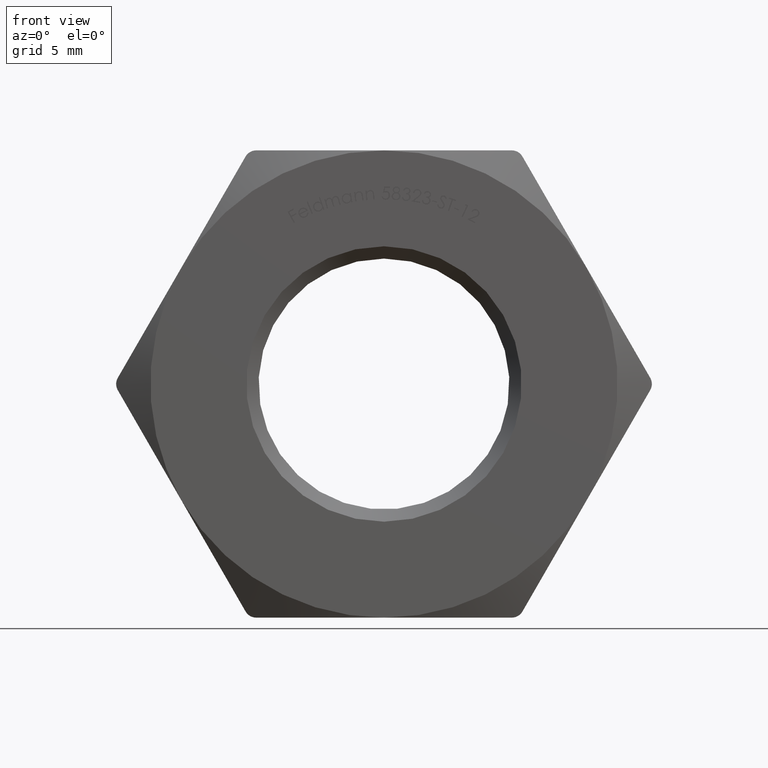
[diagram: clean part render]
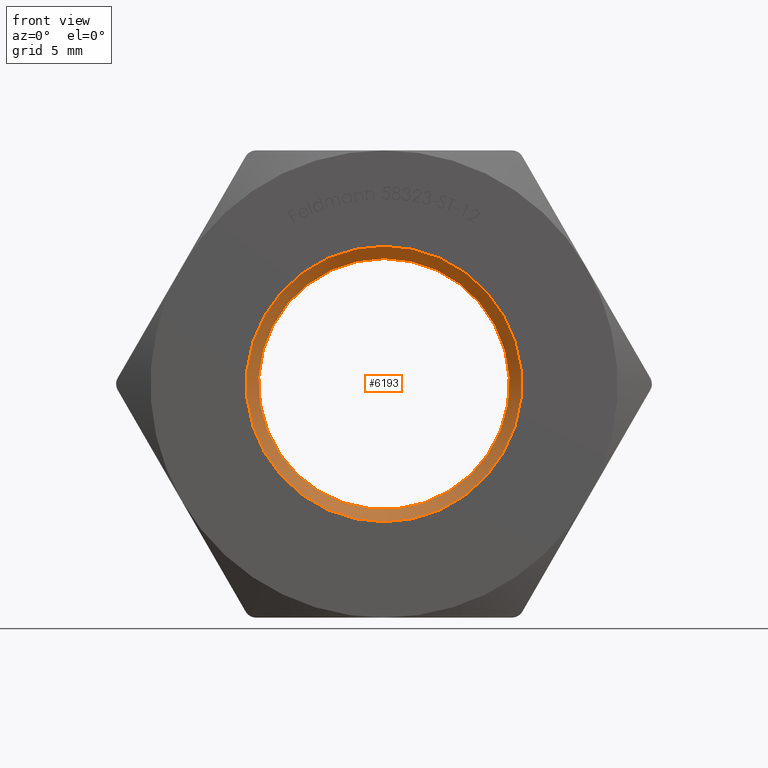
[diagram: same view with one face highlighted and labeled with its STEP entity id]
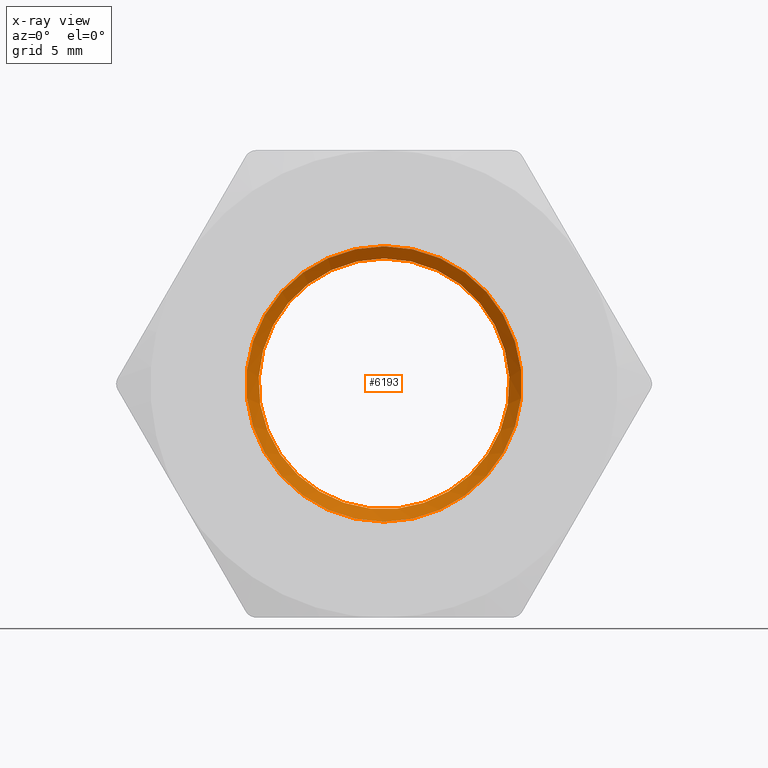
[diagram: x-ray of the same camera — body ghosted, the highlighted face saturated]
A machine part, front view. The second image highlights one B-rep face of the part: STEP entity #6193.
The next image is the same camera in x-ray: the body ghosted, the highlighted face saturated — about 0% of this face is hidden behind the body in this view.
In plain terms, the highlighted conical surface has half-angle 45 deg.
Its self-contained STEP definition (entity closure, byte-faithful):
#43 = DIRECTION ( 'NONE',  ( -0.000000000000000000, -1.000000000000000000, -0.000000000000000000 ) ) ;
#1066 = CARTESIAN_POINT ( 'NONE',  ( 0.000000000000000000, -3.000000000000003109, 0.000000000000000000 ) ) ;
#1412 = DIRECTION ( 'NONE',  ( 0.000000000000000000, 0.000000000000000000, 1.000000000000000000 ) ) ;
#1511 = DIRECTION ( 'NONE',  ( 0.000000000000000000, 1.000000000000000000, 0.000000000000000000 ) ) ;
#2236 = CARTESIAN_POINT ( 'NONE',  ( 0.000000000000000000, -3.500000000000000000, 0.000000000000000000 ) ) ;
#2817 = ORIENTED_EDGE ( 'NONE', *, *, #3908, .F. ) ;
#3201 = AXIS2_PLACEMENT_3D ( 'NONE', #2236, #9427, #15152 ) ;
#3908 = EDGE_CURVE ( 'NONE', #13890, #13890, #4319, .T. ) ;
#3997 = CARTESIAN_POINT ( 'NONE',  ( 0.000000000000000000, -3.000000000000003109, 5.099999999999996980 ) ) ;
#4319 = CIRCLE ( 'NONE', #8056, 5.099999999999996980 ) ;
#4681 = AXIS2_PLACEMENT_3D ( 'NONE', #10885, #1511, #1412 ) ;
#6193 = ADVANCED_FACE ( 'NONE', ( #13962, #8002 ), #14690, .F. ) ;
#6977 = VERTEX_POINT ( 'NONE', #14463 ) ;
#7694 = EDGE_LOOP ( 'NONE', ( #2817 ) ) ;
#8002 = FACE_OUTER_BOUND ( 'NONE', #9733, .T. ) ;
#8056 = AXIS2_PLACEMENT_3D ( 'NONE', #1066, #43, #10638 ) ;
#9210 = EDGE_CURVE ( 'NONE', #6977, #6977, #13323, .T. ) ;
#9427 = DIRECTION ( 'NONE',  ( -0.000000000000000000, -1.000000000000000000, -0.000000000000000000 ) ) ;
#9733 = EDGE_LOOP ( 'NONE', ( #11537 ) ) ;
#10638 = DIRECTION ( 'NONE',  ( 0.000000000000000000, 0.000000000000000000, 1.000000000000000000 ) ) ;
#10885 = CARTESIAN_POINT ( 'NONE',  ( 0.000000000000000000, -3.500000000000000000, 0.000000000000000000 ) ) ;
#11537 = ORIENTED_EDGE ( 'NONE', *, *, #9210, .F. ) ;
#13323 = CIRCLE ( 'NONE', #4681, 5.599999999999990763 ) ;
#13890 = VERTEX_POINT ( 'NONE', #3997 ) ;
#13962 = FACE_BOUND ( 'NONE', #7694, .T. ) ;
#14463 = CARTESIAN_POINT ( 'NONE',  ( 0.000000000000000000, -3.500000000000000000, 5.599999999999990763 ) ) ;
#14690 = CONICAL_SURFACE ( 'NONE', #3201, 5.599999999999990763, 0.7853981633974447263 ) ;
#15152 = DIRECTION ( 'NONE',  ( 0.000000000000000000, 0.000000000000000000, -1.000000000000000000 ) ) ;